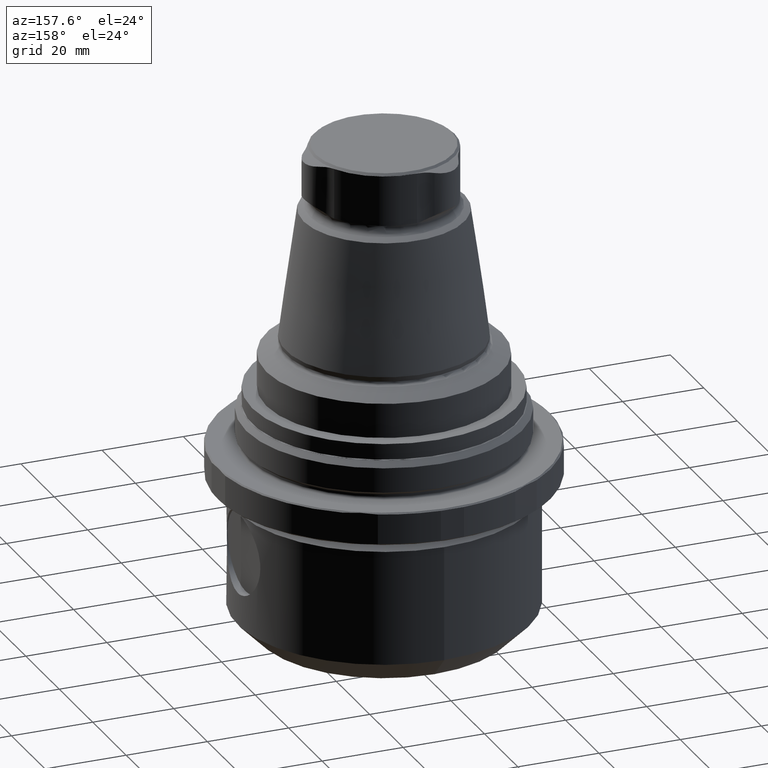
[diagram: clean part render]
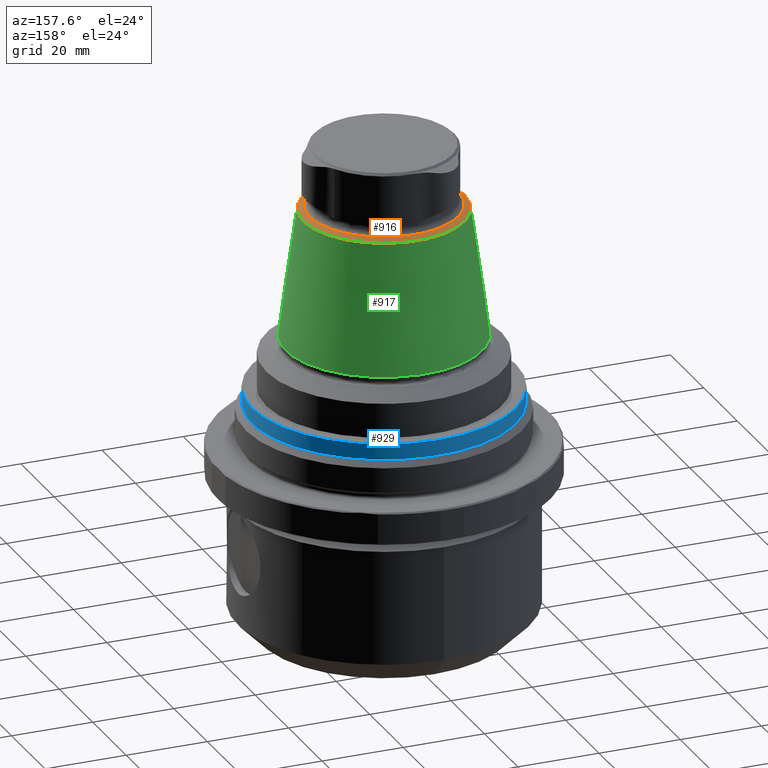
[diagram: same view with three faces highlighted in distinct colors, each labeled with its STEP entity id]
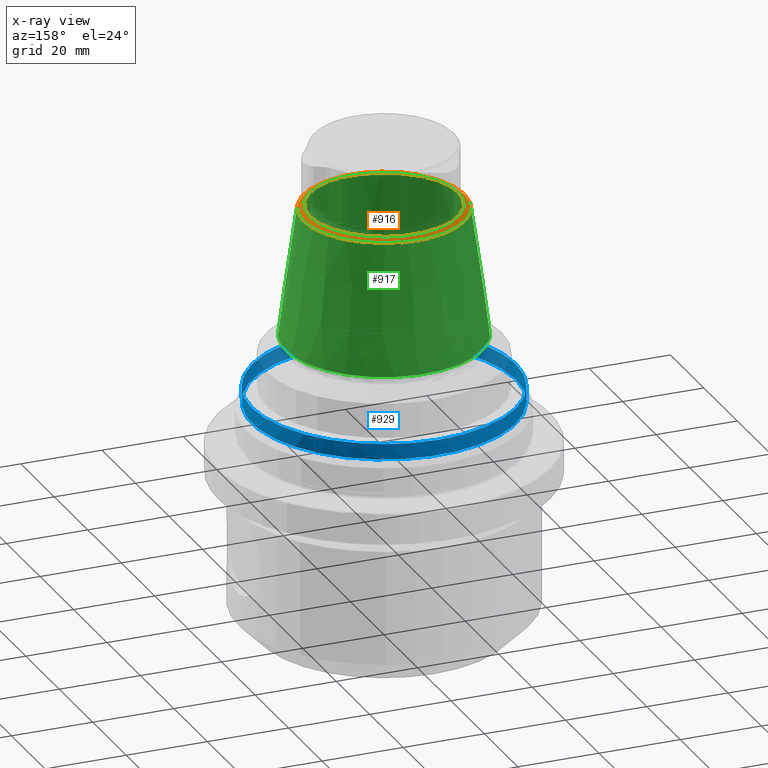
[diagram: x-ray of the same camera — body ghosted, the three highlighted faces saturated]
A machine part, auxiliary view with three faces highlighted in distinct colors.
The next image is the same camera in x-ray (body ghosted, the three faces saturated) — at least one of them is partly hidden behind the body in this view.
Their STEP definitions:

[orange] entity #916 — the highlighted conical surface has half-angle 60 deg.
#86=CONICAL_SURFACE('',#1008,19.820622068747,1.0471975511966);
#126=CIRCLE('',#1007,18.28);
#127=CIRCLE('',#1009,19.820622068747);
#266=ORIENTED_EDGE('',*,*,#466,.T.);
#267=ORIENTED_EDGE('',*,*,#467,.F.);
#466=EDGE_CURVE('',#575,#575,#126,.T.);
#467=EDGE_CURVE('',#576,#576,#127,.T.);
#575=VERTEX_POINT('',#1602);
#576=VERTEX_POINT('',#1605);
#700=EDGE_LOOP('',(#266));
#701=EDGE_LOOP('',(#267));
#797=FACE_BOUND('',#700,.T.);
#798=FACE_BOUND('',#701,.T.);
#916=ADVANCED_FACE('',(#797,#798),#86,.T.);
#1007=AXIS2_PLACEMENT_3D('',#1601,#1173,#1174);
#1008=AXIS2_PLACEMENT_3D('',#1603,#1175,#1176);
#1009=AXIS2_PLACEMENT_3D('',#1604,#1177,#1178);
#1173=DIRECTION('',(1.22461692971323E-16,2.24951050968791E-32,-1.));
#1174=DIRECTION('',(-1.,-1.83690953073357E-16,-1.22461692971323E-16));
#1175=DIRECTION('',(1.22461692971323E-16,2.24951050968791E-32,-1.));
#1176=DIRECTION('',(-1.,-1.83690953073357E-16,-1.22461692971323E-16));
#1177=DIRECTION('',(1.22461692971323E-16,2.24951050968791E-32,-1.));
#1178=DIRECTION('',(-1.,-1.83690953073357E-16,-1.22461692971323E-16));
#1601=CARTESIAN_POINT('',(1.86742218163645E-15,3.43028560335126E-31,57.7519331303847));
#1602=CARTESIAN_POINT('',(-18.28,-3.35787062218096E-15,57.7519331303847));
#1603=CARTESIAN_POINT('',(1.97634923270405E-15,3.63037474161204E-31,56.8624545642742));
#1604=CARTESIAN_POINT('',(1.97634923270405E-15,3.63037474161204E-31,56.8624545642742));
#1605=CARTESIAN_POINT('',(-19.820622068747,-3.64086895831493E-15,56.8624545642742));

[blue] entity #929 — the highlighted cylindrical surface (bore or boss wall) has radius 32.48 mm, axis along (-0, -0, 1).
#139=CIRCLE('',#1032,32.48);
#141=CIRCLE('',#1036,32.48);
#292=ORIENTED_EDGE('',*,*,#479,.T.);
#293=ORIENTED_EDGE('',*,*,#481,.T.);
#479=EDGE_CURVE('',#588,#588,#139,.T.);
#481=EDGE_CURVE('',#590,#590,#141,.T.);
#588=VERTEX_POINT('',#1640);
#590=VERTEX_POINT('',#1646);
#726=EDGE_LOOP('',(#292));
#727=EDGE_LOOP('',(#293));
#823=FACE_BOUND('',#726,.T.);
#824=FACE_BOUND('',#727,.T.);
#884=CYLINDRICAL_SURFACE('',#1035,32.48);
#929=ADVANCED_FACE('',(#823,#824),#884,.T.);
#1032=AXIS2_PLACEMENT_3D('',#1639,#1223,#1224);
#1035=AXIS2_PLACEMENT_3D('',#1644,#1229,#1230);
#1036=AXIS2_PLACEMENT_3D('',#1645,#1231,#1232);
#1223=DIRECTION('',(1.74856140711995E-16,-4.32973444300662E-17,-1.));
#1224=DIRECTION('',(1.,-1.34441069388203E-17,1.80493992008919E-16));
#1229=DIRECTION('',(-1.74856140711995E-16,-1.79329732610527E-17,1.));
#1230=DIRECTION('',(-1.,1.34441069388203E-17,-1.80493992008919E-16));
#1231=DIRECTION('',(-1.74856140711995E-16,-7.91632909521715E-17,1.));
#1232=DIRECTION('',(-1.,1.34441069388203E-17,-1.80493992008919E-16));
#1639=CARTESIAN_POINT('',(0.,-7.4139489907273E-15,12.46));
#1640=CARTESIAN_POINT('',(32.48,-7.85061358410018E-15,12.46));
#1644=CARTESIAN_POINT('',(3.3747235157415E-16,-7.37933835233347E-15,10.53));
#1645=CARTESIAN_POINT('',(6.74944703148299E-16,-7.34472771393964E-15,8.59999999999999));
#1646=CARTESIAN_POINT('',(-32.48,-6.90806312056675E-15,8.59999999999999));

[green] entity #917 — the highlighted conical surface has half-angle 7.95 deg.
#87=CONICAL_SURFACE('',#1010,24.2110659529869,0.138753675533549);
#127=CIRCLE('',#1009,19.820622068747);
#128=CIRCLE('',#1011,24.2110659529869);
#268=ORIENTED_EDGE('',*,*,#467,.T.);
#269=ORIENTED_EDGE('',*,*,#468,.F.);
#467=EDGE_CURVE('',#576,#576,#127,.T.);
#468=EDGE_CURVE('',#577,#577,#128,.T.);
#576=VERTEX_POINT('',#1605);
#577=VERTEX_POINT('',#1608);
#702=EDGE_LOOP('',(#268));
#703=EDGE_LOOP('',(#269));
#799=FACE_BOUND('',#702,.T.);
#800=FACE_BOUND('',#703,.T.);
#917=ADVANCED_FACE('',(#799,#800),#87,.T.);
#1009=AXIS2_PLACEMENT_3D('',#1604,#1177,#1178);
#1010=AXIS2_PLACEMENT_3D('',#1606,#1179,#1180);
#1011=AXIS2_PLACEMENT_3D('',#1607,#1181,#1182);
#1177=DIRECTION('',(1.22461692971323E-16,2.24951050968791E-32,-1.));
#1178=DIRECTION('',(-1.,-1.83690953073357E-16,-1.22461692971323E-16));
#1179=DIRECTION('',(1.22461692971323E-16,2.24951050968791E-32,-1.));
#1180=DIRECTION('',(-1.,-1.83690953073357E-16,-1.22461692971323E-16));
#1181=DIRECTION('',(1.22461692971323E-16,2.24951050968791E-32,-1.));
#1182=DIRECTION('',(-1.,-1.83690953073357E-16,-1.22461692971323E-16));
#1604=CARTESIAN_POINT('',(1.97634923270405E-15,3.63037474161204E-31,56.8624545642742));
#1605=CARTESIAN_POINT('',(-19.820622068747,-3.64086895831493E-15,56.8624545642742));
#1606=CARTESIAN_POINT('',(5.82638272995627E-15,1.07025379663581E-30,25.4237784865737));
#1607=CARTESIAN_POINT('',(5.82638272995627E-15,1.07025379663581E-30,25.4237784865737));
#1608=CARTESIAN_POINT('',(-24.2110659529869,-4.44735377982606E-15,25.4237784865737));